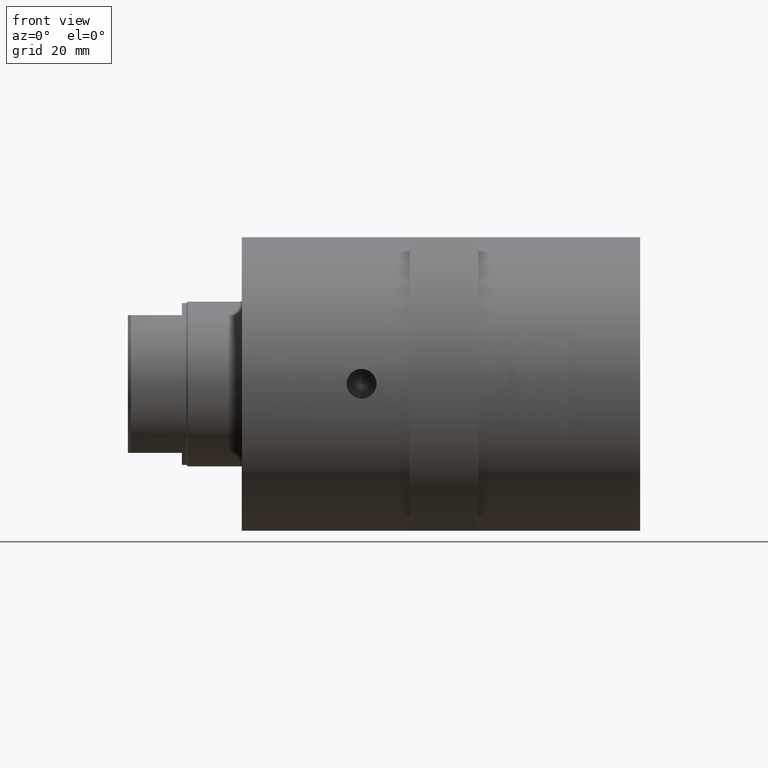
[diagram: clean part render]
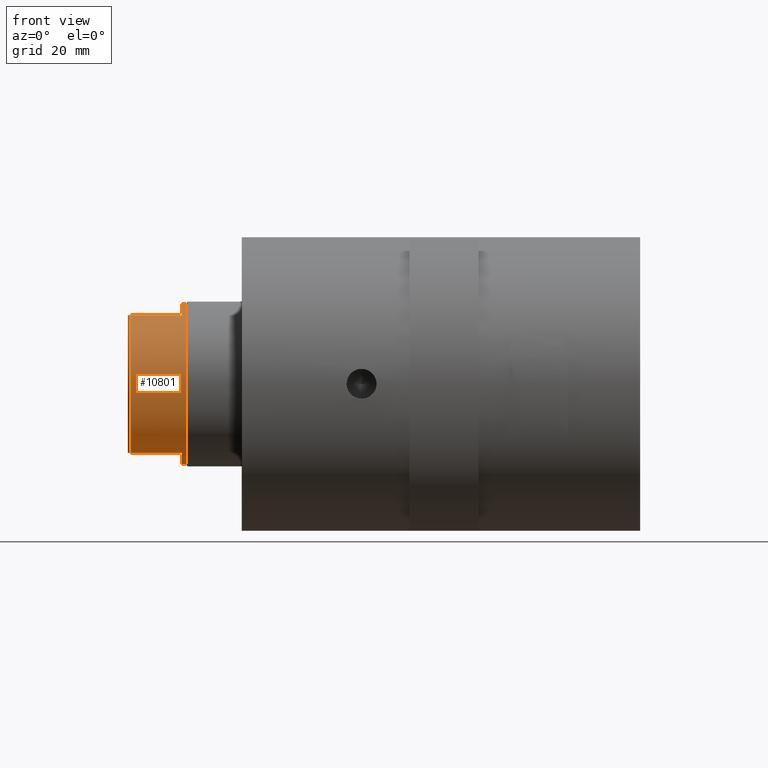
[diagram: same view with one face highlighted and labeled with its STEP entity id]
A machine part, front view. The second image highlights one B-rep face of the part: STEP entity #10801.
In plain terms, the highlighted cylindrical surface (partial cylindrical patch) has radius 27 mm, axis along (1, 0, 0).
Its self-contained STEP definition (entity closure, byte-faithful):
#197 = LINE ( 'NONE', #18667, #2080 ) ;
#400 = DIRECTION ( 'NONE',  ( 0.0000000000000000000, 0.0000000000000000000, -1.000000000000000000 ) ) ;
#486 = CIRCLE ( 'NONE', #6169, 27.00000000000000000 ) ;
#880 = VERTEX_POINT ( 'NONE', #1247 ) ;
#1228 = DIRECTION ( 'NONE',  ( -1.000000000000000000, -0.0000000000000000000, -0.0000000000000000000 ) ) ;
#1247 = CARTESIAN_POINT ( 'NONE',  ( -37.00000000000000000, -14.14213562373091900, -23.00000000000000000 ) ) ;
#1274 = VERTEX_POINT ( 'NONE', #11661 ) ;
#1888 = ORIENTED_EDGE ( 'NONE', *, *, #15726, .F. ) ;
#1932 = EDGE_CURVE ( 'NONE', #10277, #3871, #21501, .T. ) ;
#2080 = VECTOR ( 'NONE', #1228, 1000.000000000000000 ) ;
#2301 = CARTESIAN_POINT ( 'NONE',  ( -20.00000000000000000, 0.0000000000000000000, 0.0000000000000000000 ) ) ;
#2374 = ORIENTED_EDGE ( 'NONE', *, *, #18608, .F. ) ;
#2758 = CYLINDRICAL_SURFACE ( 'NONE', #5129, 27.00000000000000000 ) ;
#2791 = EDGE_CURVE ( 'NONE', #21729, #880, #22019, .T. ) ;
#2823 = CARTESIAN_POINT ( 'NONE',  ( -20.00000000000000000, 3.306546357697853700E-015, 27.00000000000000000 ) ) ;
#3871 = VERTEX_POINT ( 'NONE', #13236 ) ;
#4091 = CARTESIAN_POINT ( 'NONE',  ( -20.00000000000000000, -14.14213562373089900, -23.00000000000000000 ) ) ;
#4870 = CARTESIAN_POINT ( 'NONE',  ( -37.00000000000000000, -14.14213562373091900, 23.00000000000000000 ) ) ;
#5129 = AXIS2_PLACEMENT_3D ( 'NONE', #15583, #18527, #19039 ) ;
#5206 = VECTOR ( 'NONE', #12780, 1000.000000000000000 ) ;
#5625 = ORIENTED_EDGE ( 'NONE', *, *, #1932, .T. ) ;
#6169 = AXIS2_PLACEMENT_3D ( 'NONE', #2301, #14298, #400 ) ;
#6622 = AXIS2_PLACEMENT_3D ( 'NONE', #16322, #12750, #16173 ) ;
#7105 = FACE_OUTER_BOUND ( 'NONE', #16219, .T. ) ;
#7134 = DIRECTION ( 'NONE',  ( -1.000000000000000000, -0.0000000000000000000, -0.0000000000000000000 ) ) ;
#9617 = VERTEX_POINT ( 'NONE', #4091 ) ;
#10060 = DIRECTION ( 'NONE',  ( 1.000000000000000000, 0.0000000000000000000, 0.0000000000000000000 ) ) ;
#10277 = VERTEX_POINT ( 'NONE', #18883 ) ;
#10487 = EDGE_CURVE ( 'NONE', #18416, #1274, #10907, .T. ) ;
#10801 = ADVANCED_FACE ( 'NONE', ( #7105 ), #2758, .T. ) ;
#10907 = LINE ( 'NONE', #13977, #5206 ) ;
#11401 = VECTOR ( 'NONE', #7134, 1000.000000000000000 ) ;
#11661 = CARTESIAN_POINT ( 'NONE',  ( -18.50000000000000000, 3.306546357697853700E-015, 27.00000000000000000 ) ) ;
#12224 = CARTESIAN_POINT ( 'NONE',  ( 17.00000000000000000, -14.14213562373089900, -23.00000000000000000 ) ) ;
#12706 = EDGE_CURVE ( 'NONE', #18416, #13327, #486, .T. ) ;
#12750 = DIRECTION ( 'NONE',  ( -1.000000000000000000, 0.0000000000000000000, 0.0000000000000000000 ) ) ;
#12775 = EDGE_CURVE ( 'NONE', #3871, #1274, #13785, .T. ) ;
#12780 = DIRECTION ( 'NONE',  ( 1.000000000000000000, 0.0000000000000000000, 0.0000000000000000000 ) ) ;
#12926 = ORIENTED_EDGE ( 'NONE', *, *, #20977, .T. ) ;
#13058 = AXIS2_PLACEMENT_3D ( 'NONE', #21211, #19547, #21288 ) ;
#13236 = CARTESIAN_POINT ( 'NONE',  ( -18.50000000000000000, 0.0000000000000000000, -27.00000000000000000 ) ) ;
#13327 = VERTEX_POINT ( 'NONE', #19058 ) ;
#13785 = CIRCLE ( 'NONE', #16243, 27.00000000000000000 ) ;
#13977 = CARTESIAN_POINT ( 'NONE',  ( 17.00000000000000000, 3.306546357697853700E-015, 27.00000000000000000 ) ) ;
#14049 = ORIENTED_EDGE ( 'NONE', *, *, #10487, .F. ) ;
#14298 = DIRECTION ( 'NONE',  ( 1.000000000000000000, 0.0000000000000000000, 0.0000000000000000000 ) ) ;
#14903 = CARTESIAN_POINT ( 'NONE',  ( -18.50000000000000000, 0.0000000000000000000, 0.0000000000000000000 ) ) ;
#15583 = CARTESIAN_POINT ( 'NONE',  ( 17.00000000000000000, 0.0000000000000000000, 0.0000000000000000000 ) ) ;
#15616 = ORIENTED_EDGE ( 'NONE', *, *, #12706, .T. ) ;
#15726 = EDGE_CURVE ( 'NONE', #10277, #9617, #16629, .T. ) ;
#16173 = DIRECTION ( 'NONE',  ( 0.0000000000000000000, 0.0000000000000000000, 1.000000000000000000 ) ) ;
#16219 = EDGE_LOOP ( 'NONE', ( #14049, #15616, #12926, #19175, #2374, #1888, #5625, #22417 ) ) ;
#16243 = AXIS2_PLACEMENT_3D ( 'NONE', #14903, #18443, #18376 ) ;
#16322 = CARTESIAN_POINT ( 'NONE',  ( -20.00000000000000000, 0.0000000000000000000, 0.0000000000000000000 ) ) ;
#16629 = CIRCLE ( 'NONE', #6622, 27.00000000000000000 ) ;
#17267 = CARTESIAN_POINT ( 'NONE',  ( 17.00000000000000000, 0.0000000000000000000, -27.00000000000000000 ) ) ;
#18015 = VECTOR ( 'NONE', #10060, 1000.000000000000000 ) ;
#18376 = DIRECTION ( 'NONE',  ( 0.0000000000000000000, 0.0000000000000000000, -1.000000000000000000 ) ) ;
#18416 = VERTEX_POINT ( 'NONE', #2823 ) ;
#18443 = DIRECTION ( 'NONE',  ( -1.000000000000000000, -0.0000000000000000000, -0.0000000000000000000 ) ) ;
#18527 = DIRECTION ( 'NONE',  ( 1.000000000000000000, 0.0000000000000000000, 0.0000000000000000000 ) ) ;
#18608 = EDGE_CURVE ( 'NONE', #9617, #880, #18967, .T. ) ;
#18667 = CARTESIAN_POINT ( 'NONE',  ( 17.00000000000000000, -14.14213562373089900, 23.00000000000000000 ) ) ;
#18883 = CARTESIAN_POINT ( 'NONE',  ( -20.00000000000000000, 0.0000000000000000000, -27.00000000000000000 ) ) ;
#18967 = LINE ( 'NONE', #12224, #11401 ) ;
#19039 = DIRECTION ( 'NONE',  ( 0.0000000000000000000, 0.0000000000000000000, -1.000000000000000000 ) ) ;
#19058 = CARTESIAN_POINT ( 'NONE',  ( -20.00000000000000000, -14.14213562373089900, 23.00000000000000000 ) ) ;
#19175 = ORIENTED_EDGE ( 'NONE', *, *, #2791, .T. ) ;
#19547 = DIRECTION ( 'NONE',  ( 1.000000000000000000, -0.0000000000000000000, -0.0000000000000000000 ) ) ;
#20977 = EDGE_CURVE ( 'NONE', #13327, #21729, #197, .T. ) ;
#21211 = CARTESIAN_POINT ( 'NONE',  ( -37.00000000000000000, 0.0000000000000000000, 0.0000000000000000000 ) ) ;
#21288 = DIRECTION ( 'NONE',  ( 0.0000000000000000000, 0.0000000000000000000, 1.000000000000000000 ) ) ;
#21501 = LINE ( 'NONE', #17267, #18015 ) ;
#21729 = VERTEX_POINT ( 'NONE', #4870 ) ;
#22019 = CIRCLE ( 'NONE', #13058, 27.00000000000000000 ) ;
#22417 = ORIENTED_EDGE ( 'NONE', *, *, #12775, .T. ) ;